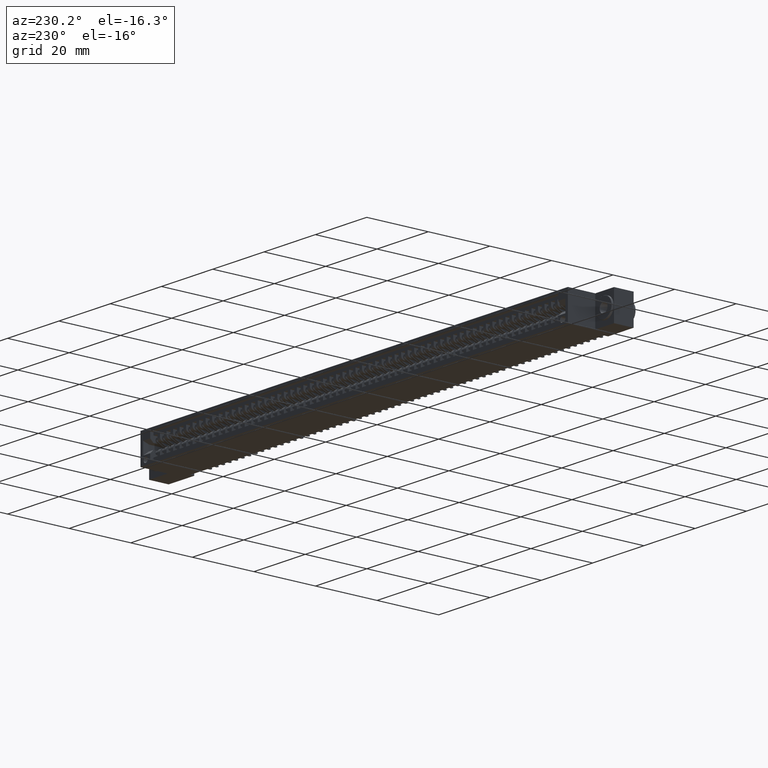
[diagram: clean part render]
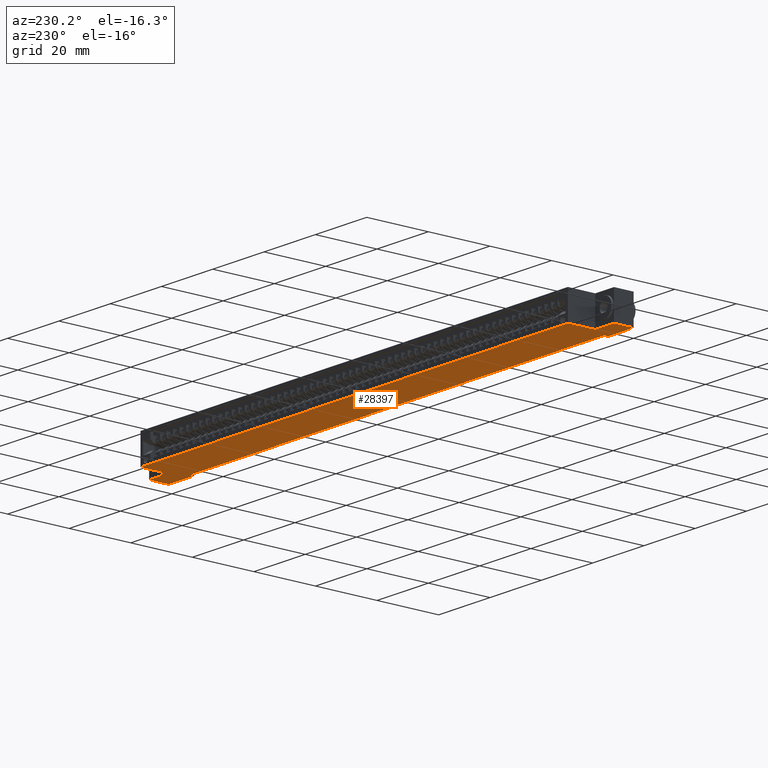
[diagram: same view with one face highlighted and labeled with its STEP entity id]
A machine part, auxiliary view. The second image highlights one B-rep face of the part: STEP entity #28397.
In plain terms, the highlighted planar face has unit normal (-0, 0, 1).
Its self-contained STEP definition (entity closure, byte-faithful):
#342 = DIRECTION ( 'NONE',  ( -1.000000000000000000, -0.0000000000000000000, -1.914399434943422000E-017 ) ) ;
#826 = CARTESIAN_POINT ( 'NONE',  ( 0.3924999999999996800, 0.05000000000000000300, -0.3700000000000000000 ) ) ;
#1088 = VECTOR ( 'NONE', #26145, 39.37007874015748100 ) ;
#1613 = VERTEX_POINT ( 'NONE', #28779 ) ;
#1979 = VERTEX_POINT ( 'NONE', #29100 ) ;
#2074 = EDGE_CURVE ( 'NONE', #6060, #40758, #23184, .T. ) ;
#2463 = DIRECTION ( 'NONE',  ( -1.000000000000000000, -0.0000000000000000000, -1.914399434943422000E-017 ) ) ;
#2780 = ORIENTED_EDGE ( 'NONE', *, *, #17118, .T. ) ;
#3087 = EDGE_CURVE ( 'NONE', #37028, #33858, #33915, .T. ) ;
#3598 = ORIENTED_EDGE ( 'NONE', *, *, #29017, .T. ) ;
#3635 = VECTOR ( 'NONE', #6135, 39.37007874015748100 ) ;
#4374 = CARTESIAN_POINT ( 'NONE',  ( 0.2874999999999999800, 0.2500000000000000000, -0.3700000000000001600 ) ) ;
#4677 = CARTESIAN_POINT ( 'NONE',  ( 0.3924999999999996800, 0.05000000000000000300, -0.3700000000000000000 ) ) ;
#5056 = EDGE_CURVE ( 'NONE', #21540, #37028, #6875, .T. ) ;
#5425 = DIRECTION ( 'NONE',  ( -0.0000000000000000000, -1.000000000000000000, -0.0000000000000000000 ) ) ;
#5873 = PLANE ( 'NONE',  #32225 ) ;
#5941 = VECTOR ( 'NONE', #34442, 39.37007874015748100 ) ;
#6060 = VERTEX_POINT ( 'NONE', #826 ) ;
#6135 = DIRECTION ( 'NONE',  ( -1.000000000000000000, -0.0000000000000000000, -1.914399434943422000E-017 ) ) ;
#6199 = DIRECTION ( 'NONE',  ( 1.000000000000000000, 0.0000000000000000000, 1.914399434943422300E-017 ) ) ;
#6213 = CARTESIAN_POINT ( 'NONE',  ( 7.135000000000000700, 0.2500000000000001100, -0.3700000000000000000 ) ) ;
#6345 = CARTESIAN_POINT ( 'NONE',  ( 0.3924999999999996800, 0.0000000000000000000, -0.3700000000000000000 ) ) ;
#6457 = CARTESIAN_POINT ( 'NONE',  ( 6.742500000000000600, 0.0000000000000000000, -0.3700000000000000000 ) ) ;
#6852 = ORIENTED_EDGE ( 'NONE', *, *, #3087, .F. ) ;
#6875 = LINE ( 'NONE', #44275, #38945 ) ;
#7024 = CARTESIAN_POINT ( 'NONE',  ( 0.2874999999999999800, 0.2500000000000000000, -0.3700000000000001600 ) ) ;
#7447 = CARTESIAN_POINT ( 'NONE',  ( 0.0000000000000000000, 0.5999999999999999800, -0.3700000000000001600 ) ) ;
#9728 = CARTESIAN_POINT ( 'NONE',  ( 0.0000000000000000000, 0.5999999999999999800, -0.3700000000000001600 ) ) ;
#13167 = EDGE_CURVE ( 'NONE', #21540, #1979, #29719, .T. ) ;
#13469 = LINE ( 'NONE', #46721, #39255 ) ;
#13859 = VECTOR ( 'NONE', #33178, 39.37007874015748100 ) ;
#14109 = EDGE_CURVE ( 'NONE', #27878, #31046, #34688, .T. ) ;
#14829 = ORIENTED_EDGE ( 'NONE', *, *, #44423, .F. ) ;
#16015 = CARTESIAN_POINT ( 'NONE',  ( 7.135000000000000700, 0.5999999999999999800, -0.3700000000000000000 ) ) ;
#16243 = VECTOR ( 'NONE', #44490, 39.37007874015748100 ) ;
#16292 = CARTESIAN_POINT ( 'NONE',  ( 6.742500000000000600, 0.05000000000000000300, -0.3700000000000000000 ) ) ;
#17118 = EDGE_CURVE ( 'NONE', #40758, #33858, #39225, .T. ) ;
#17765 = ORIENTED_EDGE ( 'NONE', *, *, #19735, .F. ) ;
#17968 = LINE ( 'NONE', #16015, #5941 ) ;
#19411 = VECTOR ( 'NONE', #5425, 39.37007874015748100 ) ;
#19735 = EDGE_CURVE ( 'NONE', #27493, #1613, #31000, .T. ) ;
#19891 = EDGE_LOOP ( 'NONE', ( #14829, #17765, #40183, #32856, #3598, #28567, #43830, #29851, #2780, #6852, #21153, #30120 ) ) ;
#20129 = VECTOR ( 'NONE', #36300, 39.37007874015748100 ) ;
#21062 = CARTESIAN_POINT ( 'NONE',  ( 0.0000000000000000000, 0.0000000000000000000, -0.3700000000000001600 ) ) ;
#21153 = ORIENTED_EDGE ( 'NONE', *, *, #5056, .F. ) ;
#21540 = VERTEX_POINT ( 'NONE', #7024 ) ;
#21902 = CARTESIAN_POINT ( 'NONE',  ( 6.847500000000001000, 0.2500000000000000000, -0.3699999999999989400 ) ) ;
#22042 = EDGE_CURVE ( 'NONE', #6060, #27878, #13469, .T. ) ;
#22127 = VECTOR ( 'NONE', #23326, 39.37007874015748100 ) ;
#22428 = EDGE_CURVE ( 'NONE', #23164, #43315, #17968, .T. ) ;
#22542 = CARTESIAN_POINT ( 'NONE',  ( 0.0000000000000000000, 0.2500000000000000000, -0.3700000000000001600 ) ) ;
#23164 = VERTEX_POINT ( 'NONE', #6213 ) ;
#23184 = LINE ( 'NONE', #4677, #16243 ) ;
#23326 = DIRECTION ( 'NONE',  ( -1.000000000000000000, 0.0000000000000000000, 3.800831991185067400E-015 ) ) ;
#23348 = CARTESIAN_POINT ( 'NONE',  ( 6.847500000000001000, 0.2500000000000000000, -0.3699999999999989400 ) ) ;
#26145 = DIRECTION ( 'NONE',  ( -0.0000000000000000000, 1.000000000000000000, -0.0000000000000000000 ) ) ;
#26393 = DIRECTION ( 'NONE',  ( -1.000000000000000000, -0.0000000000000000000, -0.0000000000000000000 ) ) ;
#27493 = VERTEX_POINT ( 'NONE', #23348 ) ;
#27878 = VERTEX_POINT ( 'NONE', #40080 ) ;
#28397 = ADVANCED_FACE ( 'NONE', ( #47155 ), #5873, .F. ) ;
#28567 = ORIENTED_EDGE ( 'NONE', *, *, #14109, .F. ) ;
#28779 = CARTESIAN_POINT ( 'NONE',  ( 6.847500000000001000, 0.5999999999999999800, -0.3699999999999989400 ) ) ;
#28906 = VECTOR ( 'NONE', #2463, 39.37007874015748100 ) ;
#29017 = EDGE_CURVE ( 'NONE', #43315, #31046, #43705, .T. ) ;
#29100 = CARTESIAN_POINT ( 'NONE',  ( 0.2874999999999999800, 0.5999999999999999800, -0.3700000000000001600 ) ) ;
#29532 = LINE ( 'NONE', #41221, #22127 ) ;
#29719 = LINE ( 'NONE', #4374, #1088 ) ;
#29851 = ORIENTED_EDGE ( 'NONE', *, *, #2074, .T. ) ;
#30120 = ORIENTED_EDGE ( 'NONE', *, *, #13167, .T. ) ;
#31000 = LINE ( 'NONE', #21902, #20129 ) ;
#31046 = VERTEX_POINT ( 'NONE', #6457 ) ;
#31482 = DIRECTION ( 'NONE',  ( -1.914399434943422300E-017, 0.0000000000000000000, 1.000000000000000000 ) ) ;
#31897 = CARTESIAN_POINT ( 'NONE',  ( 0.0000000000000000000, 0.0000000000000000000, -0.3700000000000001600 ) ) ;
#32225 = AXIS2_PLACEMENT_3D ( 'NONE', #9728, #31482, #6199 ) ;
#32845 = CARTESIAN_POINT ( 'NONE',  ( 0.0000000000000000000, 0.5999999999999999800, -0.3700000000000001600 ) ) ;
#32856 = ORIENTED_EDGE ( 'NONE', *, *, #22428, .T. ) ;
#33178 = DIRECTION ( 'NONE',  ( -0.0000000000000000000, -1.000000000000000000, -0.0000000000000000000 ) ) ;
#33472 = LINE ( 'NONE', #7447, #39754 ) ;
#33858 = VERTEX_POINT ( 'NONE', #37443 ) ;
#33915 = LINE ( 'NONE', #32845, #13859 ) ;
#34442 = DIRECTION ( 'NONE',  ( -0.0000000000000000000, -1.000000000000000000, -0.0000000000000000000 ) ) ;
#34688 = LINE ( 'NONE', #16292, #19411 ) ;
#35143 = EDGE_CURVE ( 'NONE', #23164, #27493, #29532, .T. ) ;
#35892 = CARTESIAN_POINT ( 'NONE',  ( 7.135000000000000700, 0.0000000000000000000, -0.3700000000000000000 ) ) ;
#36079 = DIRECTION ( 'NONE',  ( 1.000000000000000000, 0.0000000000000000000, 0.0000000000000000000 ) ) ;
#36300 = DIRECTION ( 'NONE',  ( -0.0000000000000000000, 1.000000000000000000, -0.0000000000000000000 ) ) ;
#37028 = VERTEX_POINT ( 'NONE', #22542 ) ;
#37443 = CARTESIAN_POINT ( 'NONE',  ( 0.0000000000000000000, 0.0000000000000000000, -0.3700000000000001600 ) ) ;
#38945 = VECTOR ( 'NONE', #26393, 39.37007874015748100 ) ;
#39225 = LINE ( 'NONE', #21062, #28906 ) ;
#39255 = VECTOR ( 'NONE', #36079, 39.37007874015748100 ) ;
#39754 = VECTOR ( 'NONE', #342, 39.37007874015748100 ) ;
#40080 = CARTESIAN_POINT ( 'NONE',  ( 6.742500000000000600, 0.05000000000000000300, -0.3700000000000000000 ) ) ;
#40183 = ORIENTED_EDGE ( 'NONE', *, *, #35143, .F. ) ;
#40758 = VERTEX_POINT ( 'NONE', #6345 ) ;
#41221 = CARTESIAN_POINT ( 'NONE',  ( 7.135000000000000700, 0.2500000000000000000, -0.3700000000000000000 ) ) ;
#43315 = VERTEX_POINT ( 'NONE', #35892 ) ;
#43705 = LINE ( 'NONE', #31897, #3635 ) ;
#43830 = ORIENTED_EDGE ( 'NONE', *, *, #22042, .F. ) ;
#44275 = CARTESIAN_POINT ( 'NONE',  ( 0.0000000000000000000, 0.2500000000000000000, -0.3700000000000001600 ) ) ;
#44423 = EDGE_CURVE ( 'NONE', #1613, #1979, #33472, .T. ) ;
#44490 = DIRECTION ( 'NONE',  ( -0.0000000000000000000, -1.000000000000000000, -0.0000000000000000000 ) ) ;
#46721 = CARTESIAN_POINT ( 'NONE',  ( 0.3924999999999996800, 0.05000000000000000300, -0.3700000000000000000 ) ) ;
#47155 = FACE_OUTER_BOUND ( 'NONE', #19891, .T. ) ;